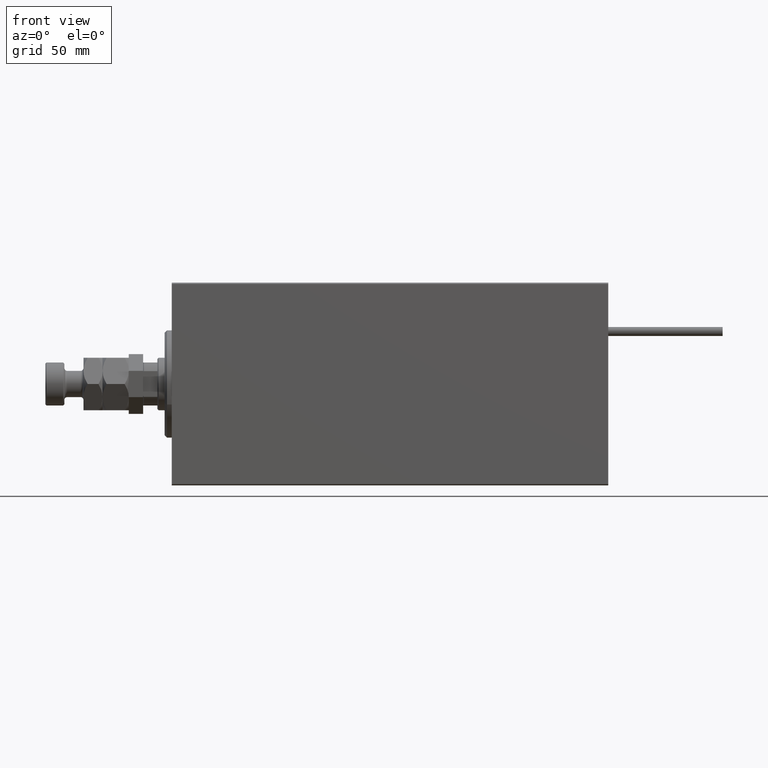
[diagram: clean part render]
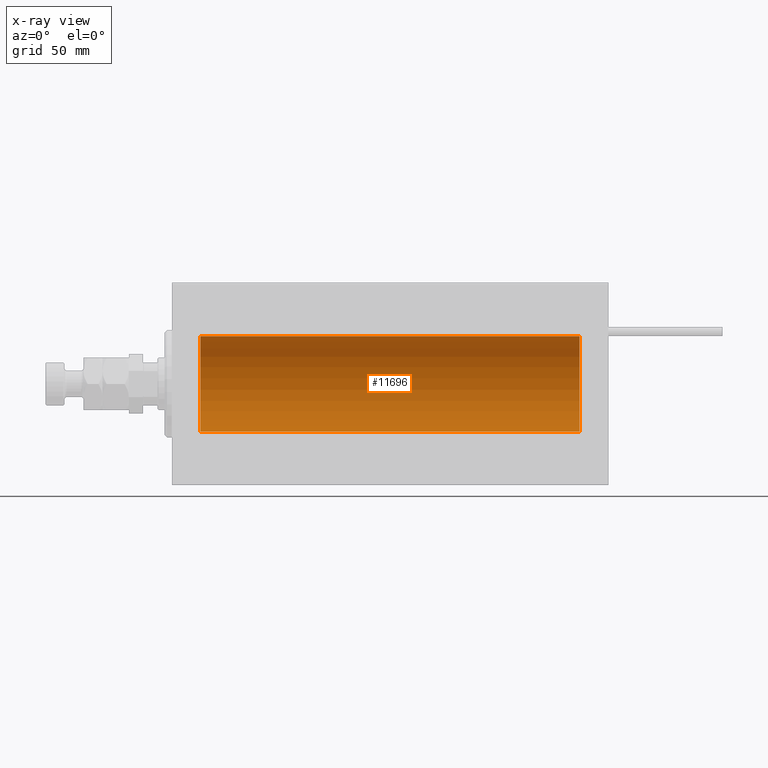
[diagram: x-ray — body ghosted, one internal face saturated and labeled with its STEP entity id]
A machine part, front view, then the same camera in x-ray: the body is ghosted and one INTERNAL B-rep face — a face not visible from any outside direction — is saturated and labeled: STEP entity #11696.
In plain terms, the highlighted cylindrical surface (partial cylindrical patch) has radius 20 mm, axis along (-1, -0, -0).
Its self-contained STEP definition (entity closure, byte-faithful):
#2470 = VECTOR ( 'NONE', #41151, 1000.000000000000000 ) ;
#2943 = DIRECTION ( 'NONE',  ( 0.000000000000000000, 0.000000000000000000, 1.000000000000000000 ) ) ;
#5091 = AXIS2_PLACEMENT_3D ( 'NONE', #7138, #6878, #2943 ) ;
#6878 = DIRECTION ( 'NONE',  ( -1.000000000000000000, 0.000000000000000000, 0.000000000000000000 ) ) ;
#7138 = CARTESIAN_POINT ( 'NONE',  ( 12.00000000000001066, 0.000000000000000000, 0.000000000000000000 ) ) ;
#9576 = DIRECTION ( 'NONE',  ( 0.000000000000000000, 0.000000000000000000, 1.000000000000000000 ) ) ;
#10083 = CARTESIAN_POINT ( 'NONE',  ( 171.0000000000000000, 0.000000000000000000, 0.000000000000000000 ) ) ;
#10186 = CARTESIAN_POINT ( 'NONE',  ( 171.0000000000000000, 2.449293598294706513E-15, -20.00000000000000000 ) ) ;
#10296 = ORIENTED_EDGE ( 'NONE', *, *, #46216, .F. ) ;
#10887 = LINE ( 'NONE', #38619, #34460 ) ;
#11696 = ADVANCED_FACE ( 'NONE', ( #16977 ), #16730, .F. ) ;
#15307 = AXIS2_PLACEMENT_3D ( 'NONE', #20917, #36879, #29285 ) ;
#16730 = CYLINDRICAL_SURFACE ( 'NONE', #15307, 20.00000000000000000 ) ;
#16977 = FACE_OUTER_BOUND ( 'NONE', #46218, .T. ) ;
#17243 = CARTESIAN_POINT ( 'NONE',  ( 12.00000000000001066, 2.449293598294706513E-15, -20.00000000000000000 ) ) ;
#17656 = CARTESIAN_POINT ( 'NONE',  ( 12.00000000000001066, 0.000000000000000000, 20.00000000000000000 ) ) ;
#20917 = CARTESIAN_POINT ( 'NONE',  ( 171.0000000000000000, 0.000000000000000000, 0.000000000000000000 ) ) ;
#20973 = CIRCLE ( 'NONE', #5091, 20.00000000000000000 ) ;
#22269 = VERTEX_POINT ( 'NONE', #10186 ) ;
#23994 = EDGE_CURVE ( 'NONE', #40117, #22269, #24088, .T. ) ;
#24088 = CIRCLE ( 'NONE', #48278, 20.00000000000000000 ) ;
#26166 = ORIENTED_EDGE ( 'NONE', *, *, #23994, .F. ) ;
#29285 = DIRECTION ( 'NONE',  ( 0.000000000000000000, 0.000000000000000000, 1.000000000000000000 ) ) ;
#32817 = LINE ( 'NONE', #45339, #2470 ) ;
#34460 = VECTOR ( 'NONE', #50910, 1000.000000000000000 ) ;
#34851 = EDGE_CURVE ( 'NONE', #51236, #35441, #20973, .T. ) ;
#35441 = VERTEX_POINT ( 'NONE', #17243 ) ;
#36879 = DIRECTION ( 'NONE',  ( -1.000000000000000000, -0.000000000000000000, -0.000000000000000000 ) ) ;
#37791 = EDGE_CURVE ( 'NONE', #40117, #51236, #10887, .T. ) ;
#38619 = CARTESIAN_POINT ( 'NONE',  ( 171.0000000000000000, 0.000000000000000000, 20.00000000000000000 ) ) ;
#40117 = VERTEX_POINT ( 'NONE', #47511 ) ;
#41151 = DIRECTION ( 'NONE',  ( -1.000000000000000000, -0.000000000000000000, -0.000000000000000000 ) ) ;
#42521 = ORIENTED_EDGE ( 'NONE', *, *, #34851, .T. ) ;
#45339 = CARTESIAN_POINT ( 'NONE',  ( 171.0000000000000000, 2.449293598294706513E-15, -20.00000000000000000 ) ) ;
#46216 = EDGE_CURVE ( 'NONE', #22269, #35441, #32817, .T. ) ;
#46218 = EDGE_LOOP ( 'NONE', ( #10296, #26166, #49214, #42521 ) ) ;
#47511 = CARTESIAN_POINT ( 'NONE',  ( 171.0000000000000000, 0.000000000000000000, 20.00000000000000000 ) ) ;
#48278 = AXIS2_PLACEMENT_3D ( 'NONE', #10083, #49340, #9576 ) ;
#49214 = ORIENTED_EDGE ( 'NONE', *, *, #37791, .T. ) ;
#49340 = DIRECTION ( 'NONE',  ( -1.000000000000000000, 0.000000000000000000, 0.000000000000000000 ) ) ;
#50910 = DIRECTION ( 'NONE',  ( -1.000000000000000000, -0.000000000000000000, -0.000000000000000000 ) ) ;
#51236 = VERTEX_POINT ( 'NONE', #17656 ) ;